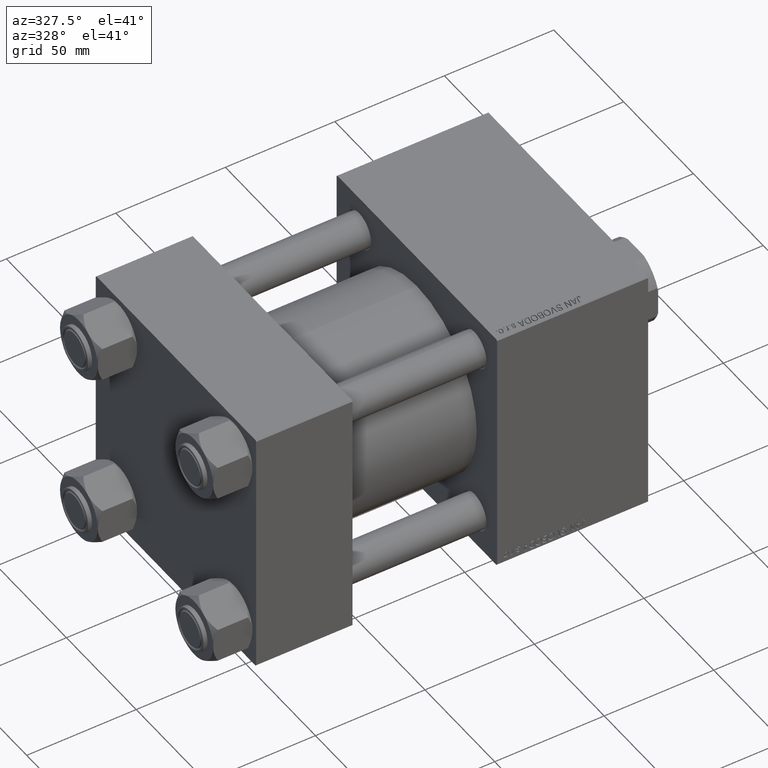
[diagram: clean part render]
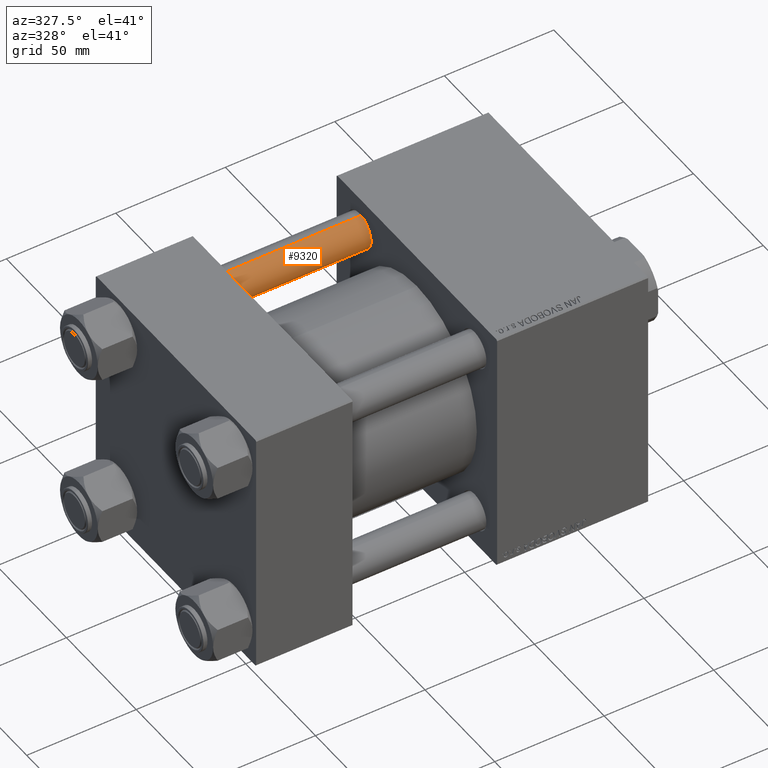
[diagram: same view with one face highlighted and labeled with its STEP entity id]
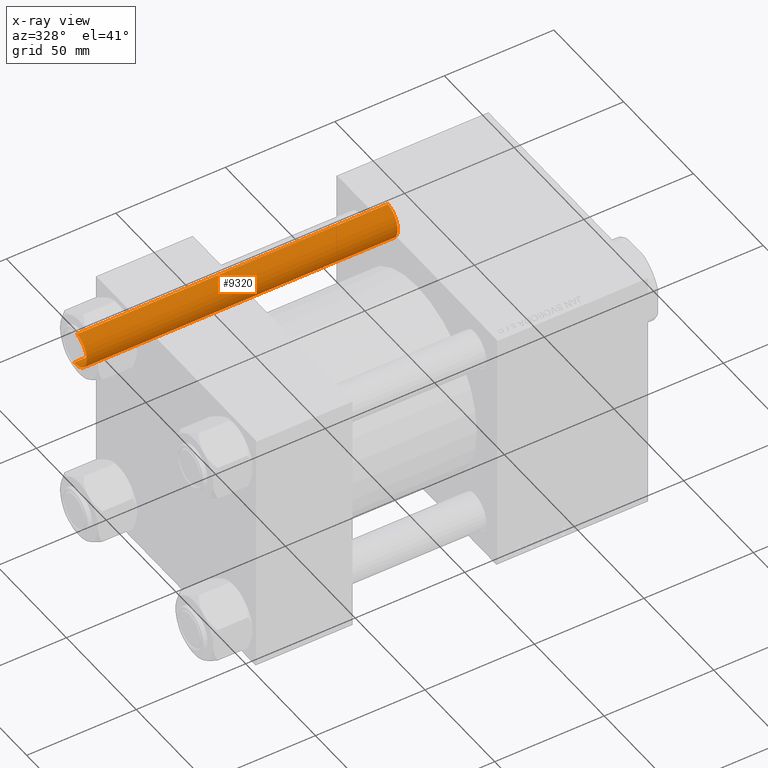
[diagram: x-ray of the same camera — body ghosted, the highlighted face saturated]
A machine part, auxiliary view. The second image highlights one B-rep face of the part: STEP entity #9320.
The next image is the same camera in x-ray: the body ghosted, the highlighted face saturated — about 0% of this face is hidden behind the body in this view.
In plain terms, the highlighted cylindrical surface (edge-blend (fillet) strip) has radius 8 mm, axis along (-1, 0, 0).
Its self-contained STEP definition (entity closure, byte-faithful):
#50 = ORIENTED_EDGE ( 'NONE', *, *, #3278, .T. ) ;
#1251 = VERTEX_POINT ( 'NONE', #21811 ) ;
#2200 = CARTESIAN_POINT ( 'NONE',  ( 0.000000000000000000, 0.000000000000000000, 143.0000000000000000 ) ) ;
#2240 = CARTESIAN_POINT ( 'NONE',  ( -8.000000000000000000, 0.000000000000000000, 143.0000000000000000 ) ) ;
#3278 = EDGE_CURVE ( 'NONE', #27072, #1251, #41938, .T. ) ;
#6562 = DIRECTION ( 'NONE',  ( -1.000000000000000000, 0.000000000000000000, 0.000000000000000000 ) ) ;
#9320 = ADVANCED_FACE ( 'NONE', ( #21665 ), #37287, .T. ) ;
#10451 = CIRCLE ( 'NONE', #39070, 8.000000000000000000 ) ;
#11962 = CARTESIAN_POINT ( 'NONE',  ( 0.000000000000000000, 0.000000000000000000, 142.4999999999999716 ) ) ;
#14222 = DIRECTION ( 'NONE',  ( -0.000000000000000000, -0.000000000000000000, 1.000000000000000000 ) ) ;
#14277 = DIRECTION ( 'NONE',  ( -0.000000000000000000, -0.000000000000000000, -1.000000000000000000 ) ) ;
#14815 = DIRECTION ( 'NONE',  ( 0.000000000000000000, 0.000000000000000000, -1.000000000000000000 ) ) ;
#15334 = CIRCLE ( 'NONE', #21065, 8.000000000000000000 ) ;
#17389 = CARTESIAN_POINT ( 'NONE',  ( 8.000000000000000000, 9.797174393178825657E-16, 143.0000000000000000 ) ) ;
#21065 = AXIS2_PLACEMENT_3D ( 'NONE', #11962, #14815, #27592 ) ;
#21665 = FACE_OUTER_BOUND ( 'NONE', #21723, .T. ) ;
#21723 = EDGE_LOOP ( 'NONE', ( #23017, #31640, #50, #34351 ) ) ;
#21811 = CARTESIAN_POINT ( 'NONE',  ( -8.000000000000000000, 0.000000000000000000, 0.4999999999999726885 ) ) ;
#21899 = DIRECTION ( 'NONE',  ( 1.000000000000000000, 0.000000000000000000, 0.000000000000000000 ) ) ;
#22425 = CARTESIAN_POINT ( 'NONE',  ( 0.000000000000000000, 0.000000000000000000, 0.4999999999999726885 ) ) ;
#23017 = ORIENTED_EDGE ( 'NONE', *, *, #23274, .F. ) ;
#23274 = EDGE_CURVE ( 'NONE', #48561, #38667, #40947, .T. ) ;
#25350 = EDGE_CURVE ( 'NONE', #1251, #38667, #10451, .T. ) ;
#27072 = VERTEX_POINT ( 'NONE', #34289 ) ;
#27592 = DIRECTION ( 'NONE',  ( 1.000000000000000000, 0.000000000000000000, 0.000000000000000000 ) ) ;
#28919 = AXIS2_PLACEMENT_3D ( 'NONE', #2200, #34223, #6562 ) ;
#31640 = ORIENTED_EDGE ( 'NONE', *, *, #44316, .T. ) ;
#33008 = DIRECTION ( 'NONE',  ( -0.000000000000000000, -0.000000000000000000, -1.000000000000000000 ) ) ;
#34223 = DIRECTION ( 'NONE',  ( -0.000000000000000000, -0.000000000000000000, -1.000000000000000000 ) ) ;
#34289 = CARTESIAN_POINT ( 'NONE',  ( -8.000000000000000000, 0.000000000000000000, 142.4999999999999716 ) ) ;
#34351 = ORIENTED_EDGE ( 'NONE', *, *, #25350, .T. ) ;
#35648 = CARTESIAN_POINT ( 'NONE',  ( 8.000000000000000000, 9.797174393178825657E-16, 0.4999999999999726885 ) ) ;
#37287 = CYLINDRICAL_SURFACE ( 'NONE', #28919, 8.000000000000000000 ) ;
#38667 = VERTEX_POINT ( 'NONE', #35648 ) ;
#39070 = AXIS2_PLACEMENT_3D ( 'NONE', #22425, #14222, #21899 ) ;
#39898 = CARTESIAN_POINT ( 'NONE',  ( 8.000000000000000000, 9.797174393178825657E-16, 142.4999999999999716 ) ) ;
#40947 = LINE ( 'NONE', #17389, #48783 ) ;
#41938 = LINE ( 'NONE', #2240, #48363 ) ;
#44316 = EDGE_CURVE ( 'NONE', #48561, #27072, #15334, .T. ) ;
#48363 = VECTOR ( 'NONE', #14277, 1000.000000000000000 ) ;
#48561 = VERTEX_POINT ( 'NONE', #39898 ) ;
#48783 = VECTOR ( 'NONE', #33008, 1000.000000000000000 ) ;